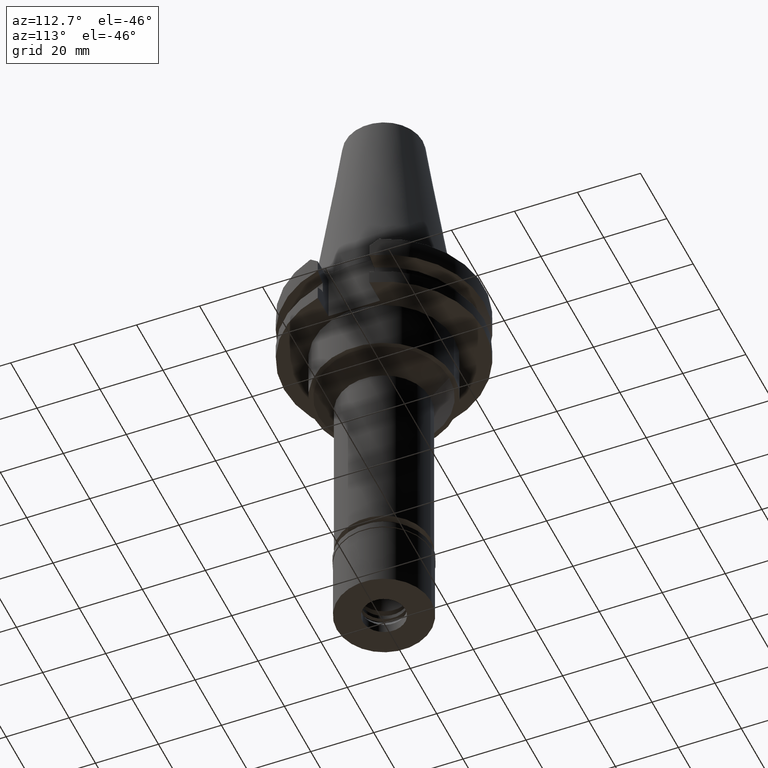
[diagram: clean part render]
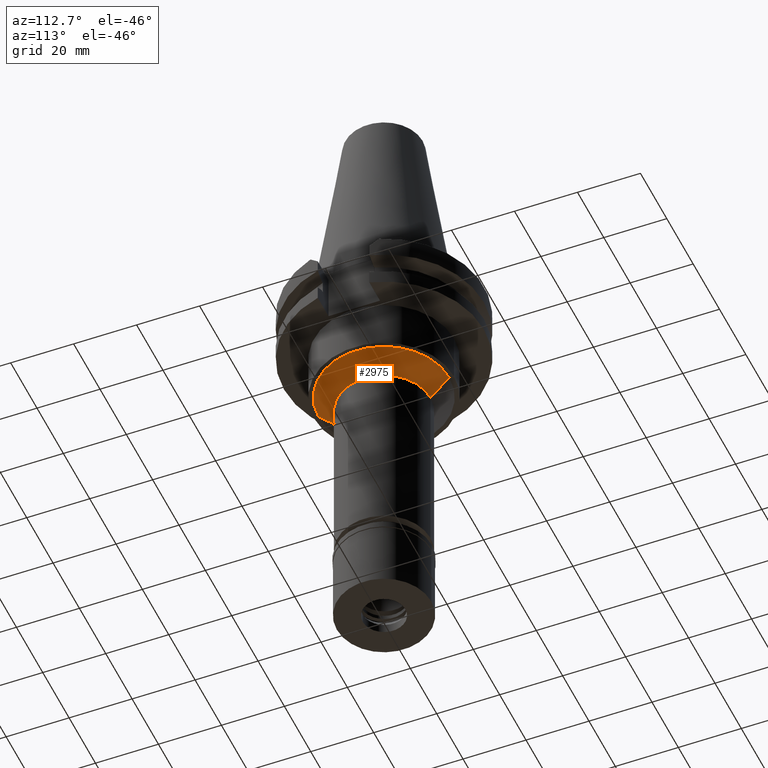
[diagram: same view with one face highlighted and labeled with its STEP entity id]
A machine part, auxiliary view. The second image highlights one B-rep face of the part: STEP entity #2975.
In plain terms, the highlighted conical surface has half-angle 45 deg.
Its self-contained STEP definition (entity closure, byte-faithful):
#47 = CARTESIAN_POINT ( 'NONE',  ( 0.0000000000000000000, 20.75000000000000000, -35.00000000000000000 ) ) ;
#55 = ORIENTED_EDGE ( 'NONE', *, *, #3308, .F. ) ;
#126 = CARTESIAN_POINT ( 'NONE',  ( 0.0000000000000000000, -20.75000000000000000, -35.00000000000000000 ) ) ;
#378 = LINE ( 'NONE', #2415, #2125 ) ;
#396 = CARTESIAN_POINT ( 'NONE',  ( 0.0000000000000000000, 14.75000000000000000, -41.00000000000000000 ) ) ;
#423 = EDGE_LOOP ( 'NONE', ( #2627, #1382, #621, #55 ) ) ;
#466 = CONICAL_SURFACE ( 'NONE', #1481, 17.75000000000000000, 0.7853981633972997312 ) ;
#618 = DIRECTION ( 'NONE',  ( 0.0000000000000000000, 0.0000000000000000000, -1.000000000000000000 ) ) ;
#621 = ORIENTED_EDGE ( 'NONE', *, *, #3098, .F. ) ;
#885 = DIRECTION ( 'NONE',  ( 0.0000000000000000000, 0.7071067811865474617, -0.7071067811865474617 ) ) ;
#1027 = DIRECTION ( 'NONE',  ( 0.0000000000000000000, 1.000000000000000000, 0.0000000000000000000 ) ) ;
#1070 = DIRECTION ( 'NONE',  ( 0.0000000000000000000, -0.7071067811865474617, -0.7071067811865474617 ) ) ;
#1116 = CARTESIAN_POINT ( 'NONE',  ( 0.0000000000000000000, 0.0000000000000000000, -41.00000000000000000 ) ) ;
#1187 = CARTESIAN_POINT ( 'NONE',  ( 0.0000000000000000000, -14.75000000000000000, -41.00000000000000000 ) ) ;
#1284 = DIRECTION ( 'NONE',  ( 0.0000000000000000000, 0.0000000000000000000, 1.000000000000000000 ) ) ;
#1323 = CIRCLE ( 'NONE', #3218, 20.75000000000000000 ) ;
#1382 = ORIENTED_EDGE ( 'NONE', *, *, #2156, .T. ) ;
#1481 = AXIS2_PLACEMENT_3D ( 'NONE', #2041, #1284, #1027 ) ;
#1497 = DIRECTION ( 'NONE',  ( 0.0000000000000000000, 0.0000000000000000000, -1.000000000000000000 ) ) ;
#1564 = FACE_OUTER_BOUND ( 'NONE', #423, .T. ) ;
#1691 = AXIS2_PLACEMENT_3D ( 'NONE', #1116, #618, #2683 ) ;
#1762 = VERTEX_POINT ( 'NONE', #126 ) ;
#1788 = LINE ( 'NONE', #47, #2943 ) ;
#2041 = CARTESIAN_POINT ( 'NONE',  ( 0.0000000000000000000, 0.0000000000000000000, -38.00000000000000000 ) ) ;
#2125 = VECTOR ( 'NONE', #885, 1000.000000000000114 ) ;
#2156 = EDGE_CURVE ( 'NONE', #1762, #2247, #378, .T. ) ;
#2247 = VERTEX_POINT ( 'NONE', #1187 ) ;
#2375 = CARTESIAN_POINT ( 'NONE',  ( 0.0000000000000000000, 20.75000000000000000, -35.00000000000000000 ) ) ;
#2415 = CARTESIAN_POINT ( 'NONE',  ( 0.0000000000000000000, -20.75000000000000000, -35.00000000000000000 ) ) ;
#2627 = ORIENTED_EDGE ( 'NONE', *, *, #3074, .T. ) ;
#2683 = DIRECTION ( 'NONE',  ( 0.0000000000000000000, 1.000000000000000000, 0.0000000000000000000 ) ) ;
#2868 = CARTESIAN_POINT ( 'NONE',  ( 0.0000000000000000000, 0.0000000000000000000, -35.00000000000000000 ) ) ;
#2943 = VECTOR ( 'NONE', #1070, 1000.000000000000114 ) ;
#2975 = ADVANCED_FACE ( 'NONE', ( #1564 ), #466, .T. ) ;
#3074 = EDGE_CURVE ( 'NONE', #3156, #1762, #1323, .T. ) ;
#3098 = EDGE_CURVE ( 'NONE', #3226, #2247, #3268, .T. ) ;
#3156 = VERTEX_POINT ( 'NONE', #2375 ) ;
#3163 = DIRECTION ( 'NONE',  ( 0.0000000000000000000, 1.000000000000000000, 0.0000000000000000000 ) ) ;
#3218 = AXIS2_PLACEMENT_3D ( 'NONE', #2868, #1497, #3163 ) ;
#3226 = VERTEX_POINT ( 'NONE', #396 ) ;
#3268 = CIRCLE ( 'NONE', #1691, 14.75000000000000000 ) ;
#3308 = EDGE_CURVE ( 'NONE', #3156, #3226, #1788, .T. ) ;